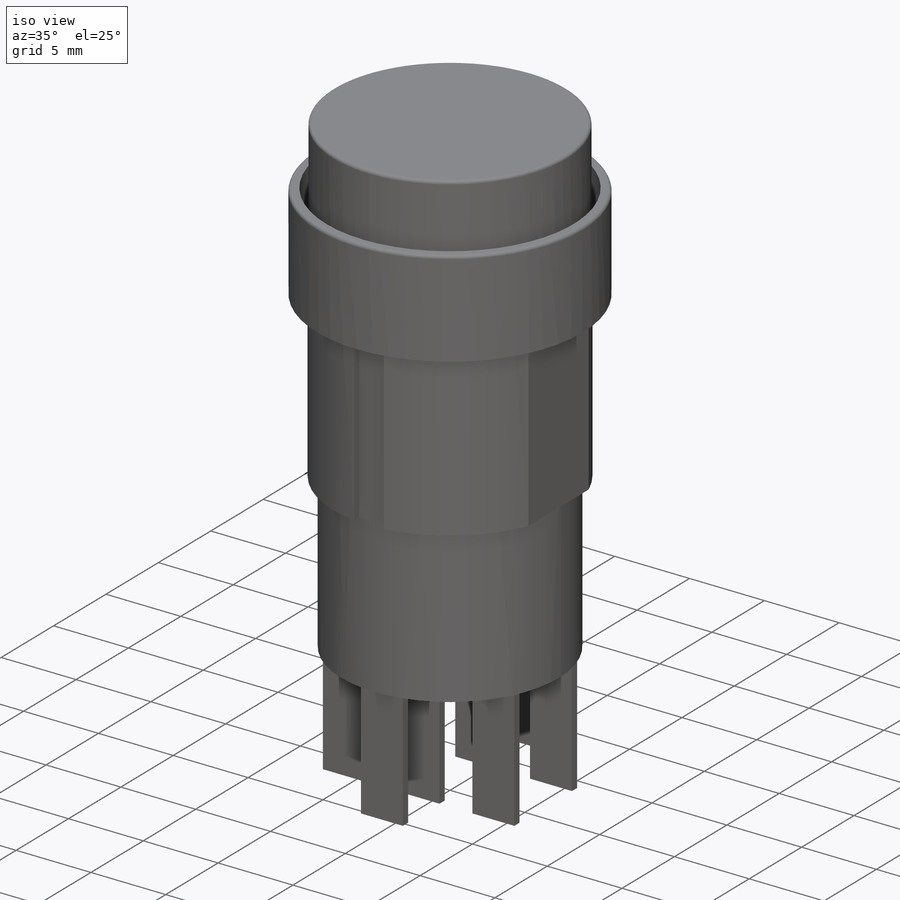
[diagram: iso view]
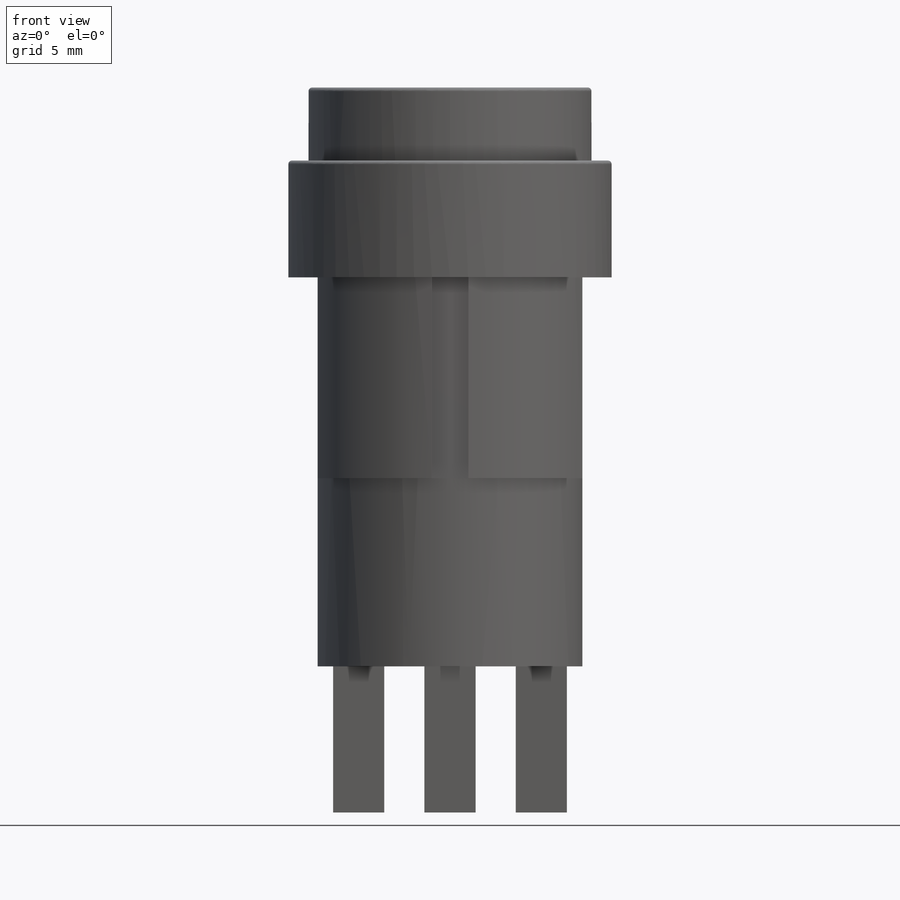
[diagram: front view]
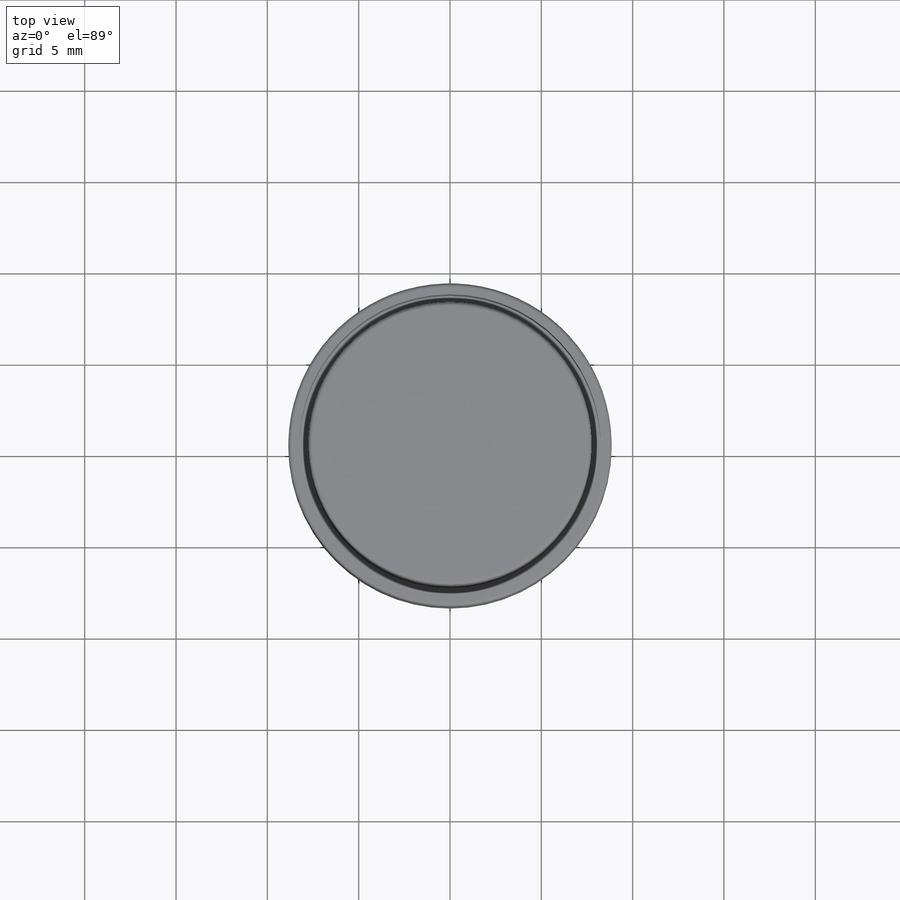
[diagram: top view]
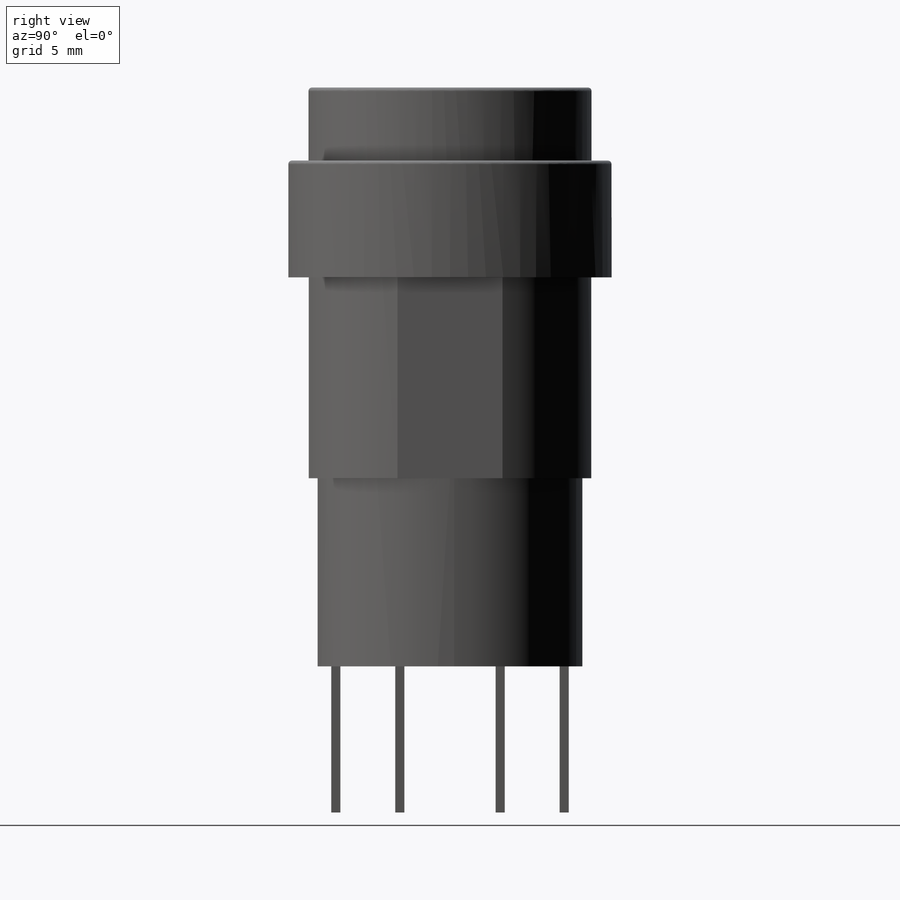
[diagram: right view]
SOLIDWORKS PART (.sldprt)
format: sldprt  version: not decoded by parser v0  size: 299,008 bytes
history: native  units: mm
features: sketch x7, extrude x5, plane x3, cut_extrude x2, material x1, fillet x1 (+9 scaffold rows collapsed)
feature tree (28):
  scaffold x9  (default folders/planes/origin — collapsed)
  material  "ABS"
  plane  "Plano frontal"
  plane  "Plano superior"
  plane  "Plano direito"
  sketch  "Esboço2"  dims[D1=17.7mm]
  extrude  "Ressalto-extrusão1"  Depth=6.4mm
  sketch  "Esboço3"  dims[D1=16.5mm]
  cut_extrude  "Corte-extrusão1"  Depth=5mm
  sketch  "Esboço4"  dims[D1=~7.226427mm]
  extrude  "Ressalto-extrusão2"  Depth=9mm
  fillet  "Filete1"  Radius=0.2mm
  sketch  "Esboço5"  dims[D1=~6.326126mm]
  extrude  "Ressalto-extrusão3"  Depth=11mm
  sketch  "Esboço6"  dims[D1=~6.616551mm]
  extrude  "Ressalto-extrusão4"  Depth=10.3mm
  sketch  "Esboço7"  dims[D1=14.5mm D2=15.6mm D3=0.55mm D4=2.0mm D5=0.55mm D6=1.0mm D7=1.0mm]
  cut_extrude  "Corte-extrusão2"  Depth=11mm
  sketch  "Esboço8"  dims[D1=0.5mm D2=2.8mm D3=2.5mm D4=12.8mm D5=3.0mm]
  extrude  "Ressalto-extrusão5"  Depth=8mm
decode coverage: 15 of 15 modeling features carry decoded parameters
note: ~ marks probable driven/reference dimensions
note: suppression state not decoded; provenance and decode notes live in map.json
